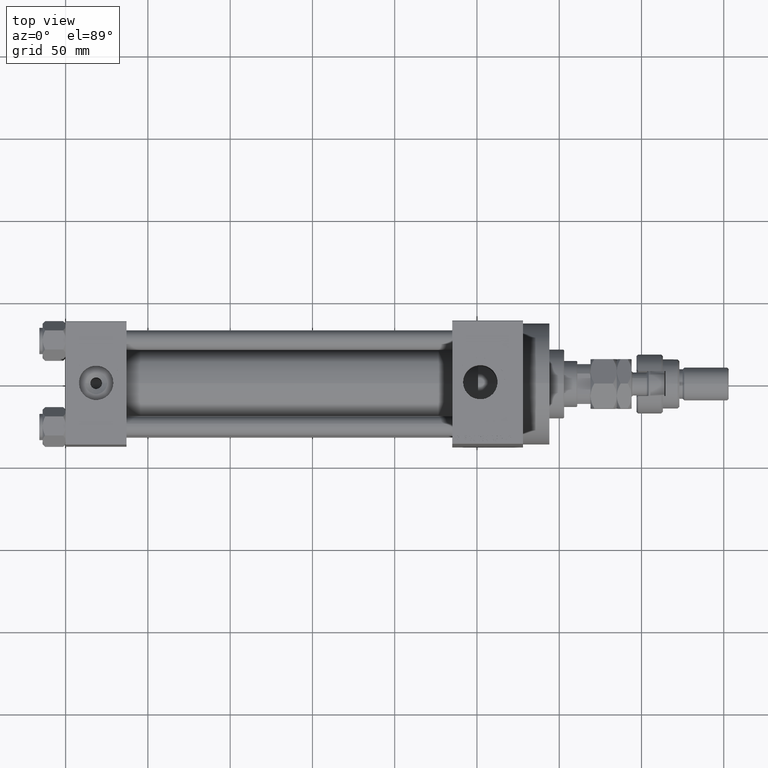
[diagram: clean part render]
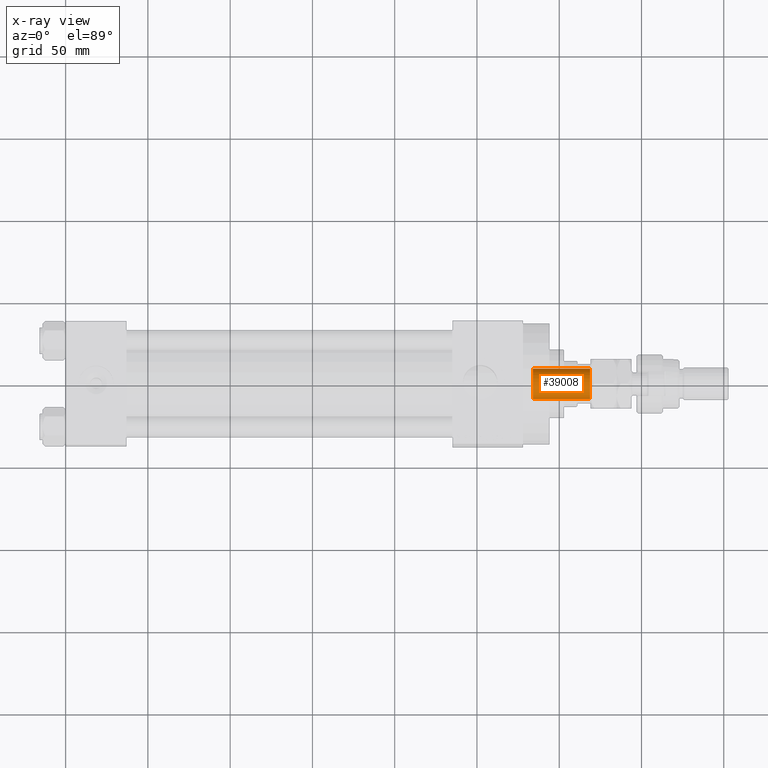
[diagram: x-ray — body ghosted, one internal face saturated and labeled with its STEP entity id]
A machine part, top view, then the same camera in x-ray: the body is ghosted and one INTERNAL B-rep face — a face not visible from any outside direction — is saturated and labeled: STEP entity #39008.
In plain terms, the highlighted cylindrical surface (edge-blend (fillet) strip) has radius 9.25 mm, axis along (1, 0, 0).
Its self-contained STEP definition (entity closure, byte-faithful):
#437 = CARTESIAN_POINT ( 'NONE',  ( 9.249999999999992895, 0.000000000000000000, 246.9999999999999716 ) ) ;
#3735 = ORIENTED_EDGE ( 'NONE', *, *, #46334, .T. ) ;
#4930 = VECTOR ( 'NONE', #43433, 1000.000000000000000 ) ;
#5418 = VERTEX_POINT ( 'NONE', #44138 ) ;
#6274 = FACE_OUTER_BOUND ( 'NONE', #17088, .T. ) ;
#8801 = ORIENTED_EDGE ( 'NONE', *, *, #46153, .F. ) ;
#12193 = LINE ( 'NONE', #27695, #46324 ) ;
#12442 = LINE ( 'NONE', #25125, #4930 ) ;
#13163 = CARTESIAN_POINT ( 'NONE',  ( -9.249999999999994671, 1.132798289211300909E-15, 281.6999999999999886 ) ) ;
#14397 = DIRECTION ( 'NONE',  ( 1.000000000000000000, 0.000000000000000000, 0.000000000000000000 ) ) ;
#15259 = CIRCLE ( 'NONE', #43635, 9.249999999999992895 ) ;
#15273 = DIRECTION ( 'NONE',  ( -0.000000000000000000, -0.000000000000000000, 1.000000000000000000 ) ) ;
#17088 = EDGE_LOOP ( 'NONE', ( #41292, #3735, #40773, #8801 ) ) ;
#17937 = CARTESIAN_POINT ( 'NONE',  ( 0.000000000000000000, 0.000000000000000000, 282.0000000000000000 ) ) ;
#18697 = DIRECTION ( 'NONE',  ( -0.000000000000000000, -0.000000000000000000, 1.000000000000000000 ) ) ;
#18782 = VERTEX_POINT ( 'NONE', #13163 ) ;
#22820 = DIRECTION ( 'NONE',  ( 1.000000000000000000, 0.000000000000000000, 0.000000000000000000 ) ) ;
#25125 = CARTESIAN_POINT ( 'NONE',  ( -9.249999999999994671, 1.132798289211300909E-15, 282.0000000000000000 ) ) ;
#27695 = CARTESIAN_POINT ( 'NONE',  ( 9.249999999999994671, 0.000000000000000000, 282.0000000000000000 ) ) ;
#29827 = VERTEX_POINT ( 'NONE', #44764 ) ;
#31552 = EDGE_CURVE ( 'NONE', #18782, #5418, #35416, .T. ) ;
#33511 = CARTESIAN_POINT ( 'NONE',  ( 0.000000000000000000, 0.000000000000000000, 281.6999999999999886 ) ) ;
#34776 = DIRECTION ( 'NONE',  ( 0.000000000000000000, 0.000000000000000000, 1.000000000000000000 ) ) ;
#35416 = CIRCLE ( 'NONE', #47602, 9.249999999999994671 ) ;
#36103 = VERTEX_POINT ( 'NONE', #437 ) ;
#36306 = DIRECTION ( 'NONE',  ( 1.000000000000000000, 0.000000000000000000, 0.000000000000000000 ) ) ;
#36560 = CARTESIAN_POINT ( 'NONE',  ( 0.000000000000000000, 0.000000000000000000, 246.9999999999999716 ) ) ;
#37710 = EDGE_CURVE ( 'NONE', #29827, #36103, #15259, .T. ) ;
#39008 = ADVANCED_FACE ( 'NONE', ( #6274 ), #49214, .F. ) ;
#40773 = ORIENTED_EDGE ( 'NONE', *, *, #31552, .T. ) ;
#41292 = ORIENTED_EDGE ( 'NONE', *, *, #37710, .F. ) ;
#43433 = DIRECTION ( 'NONE',  ( -0.000000000000000000, -0.000000000000000000, 1.000000000000000000 ) ) ;
#43635 = AXIS2_PLACEMENT_3D ( 'NONE', #36560, #48501, #36306 ) ;
#44138 = CARTESIAN_POINT ( 'NONE',  ( 9.249999999999994671, 0.000000000000000000, 281.6999999999999886 ) ) ;
#44764 = CARTESIAN_POINT ( 'NONE',  ( -9.249999999999992895, 1.132798289211300712E-15, 246.9999999999999716 ) ) ;
#45316 = AXIS2_PLACEMENT_3D ( 'NONE', #17937, #18697, #14397 ) ;
#46153 = EDGE_CURVE ( 'NONE', #36103, #5418, #12193, .T. ) ;
#46324 = VECTOR ( 'NONE', #15273, 1000.000000000000000 ) ;
#46334 = EDGE_CURVE ( 'NONE', #29827, #18782, #12442, .T. ) ;
#47602 = AXIS2_PLACEMENT_3D ( 'NONE', #33511, #34776, #22820 ) ;
#48501 = DIRECTION ( 'NONE',  ( -0.000000000000000000, -0.000000000000000000, 1.000000000000000000 ) ) ;
#49214 = CYLINDRICAL_SURFACE ( 'NONE', #45316, 9.249999999999994671 ) ;